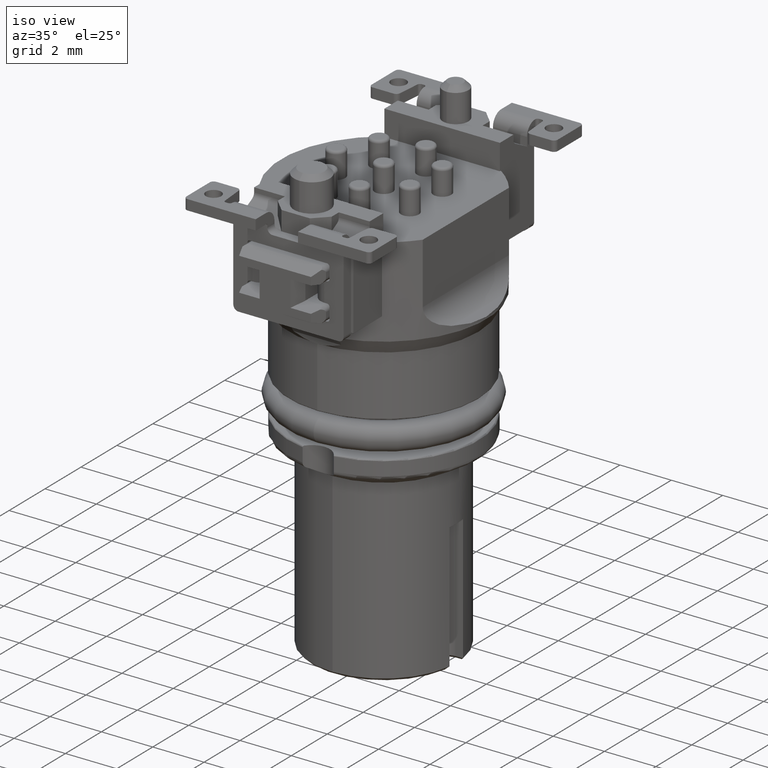
[diagram: clean part render]
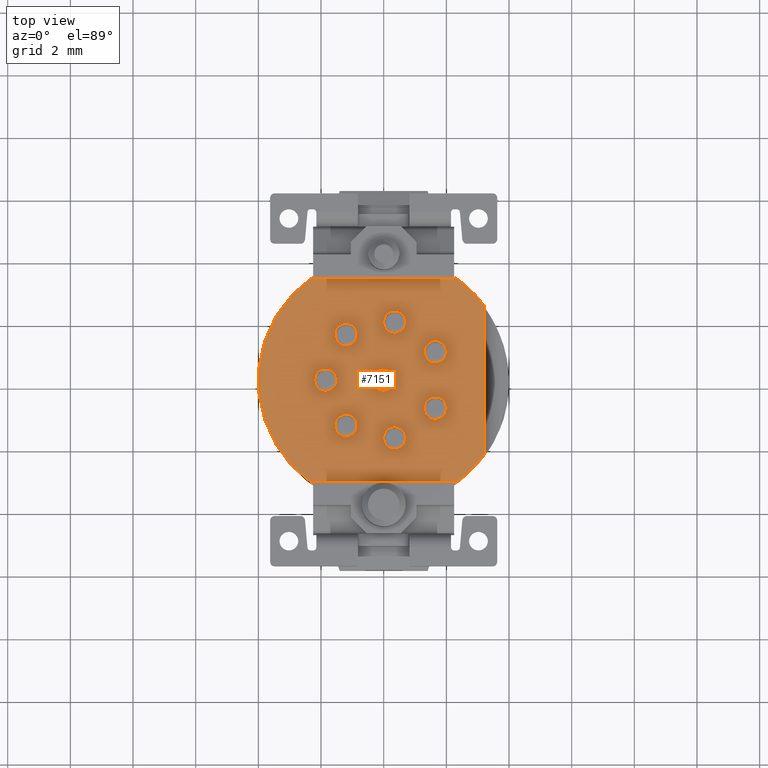
[diagram: tour spotlight — one face highlighted and labeled with its STEP entity id]
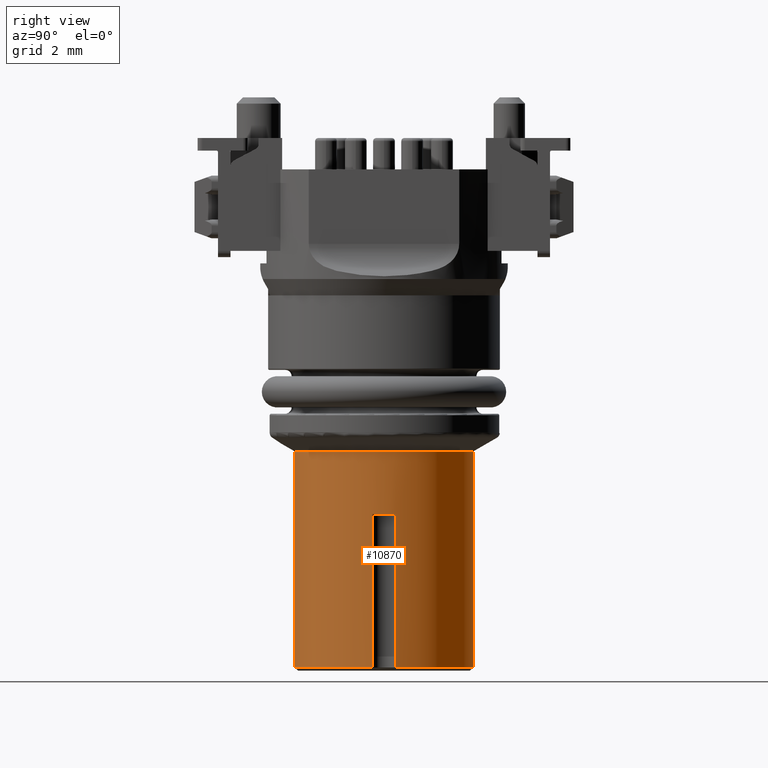
[diagram: tour spotlight — one face highlighted and labeled with its STEP entity id]
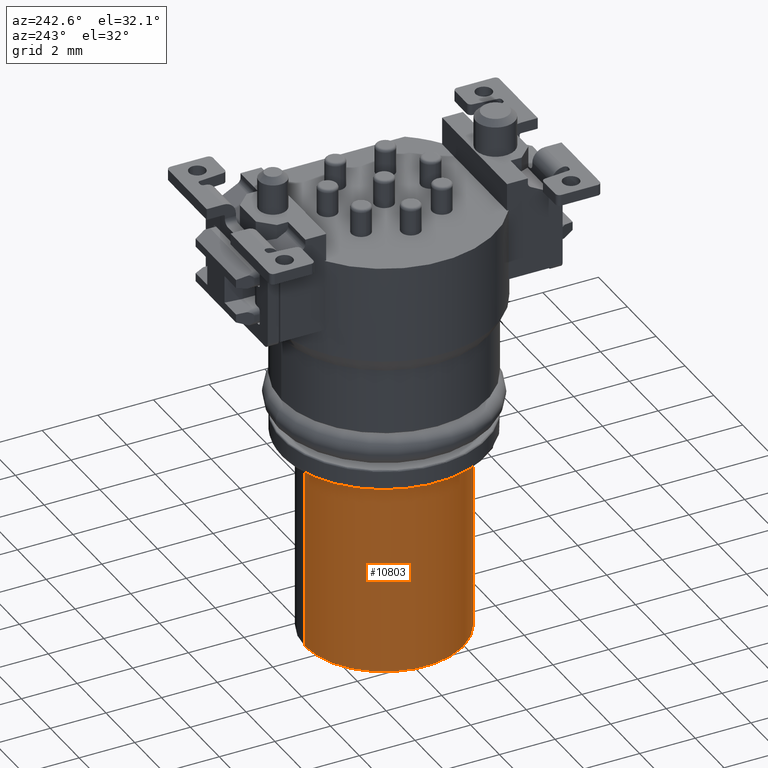
[diagram: tour spotlight — one face highlighted and labeled with its STEP entity id]
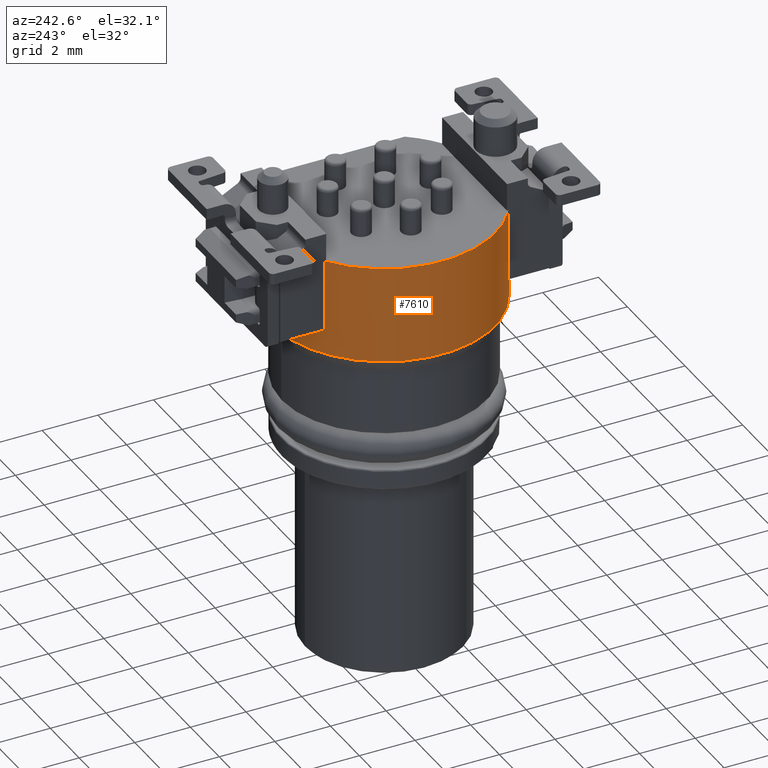
[diagram: tour spotlight — one face highlighted and labeled with its STEP entity id]
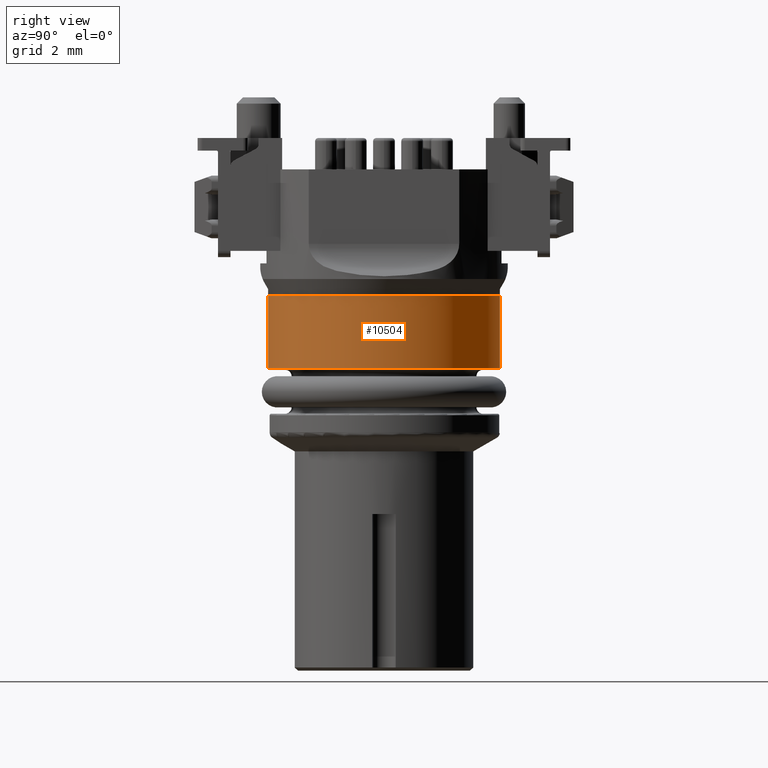
[diagram: tour spotlight — one face highlighted and labeled with its STEP entity id]
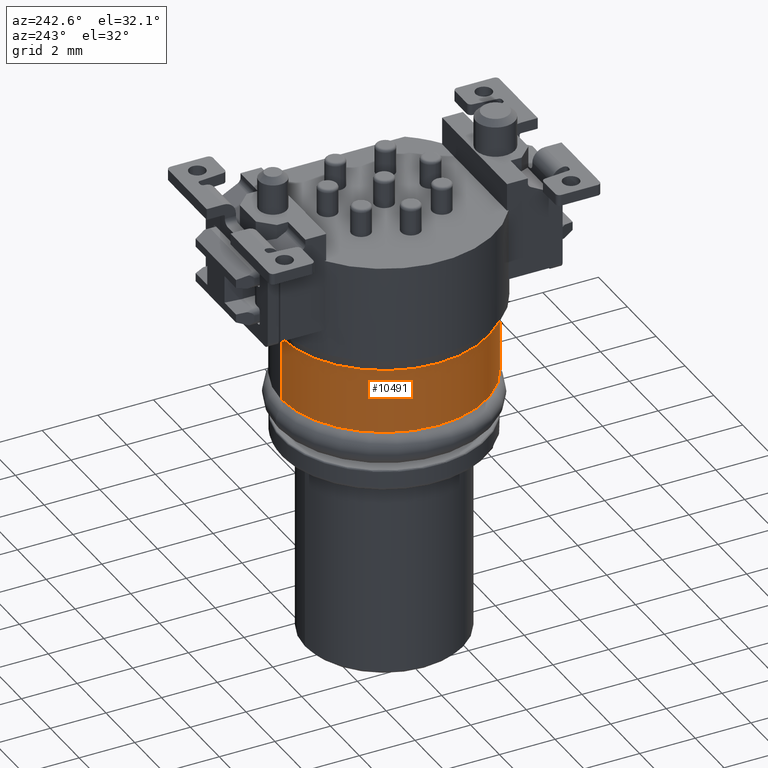
[diagram: tour spotlight — one face highlighted and labeled with its STEP entity id]
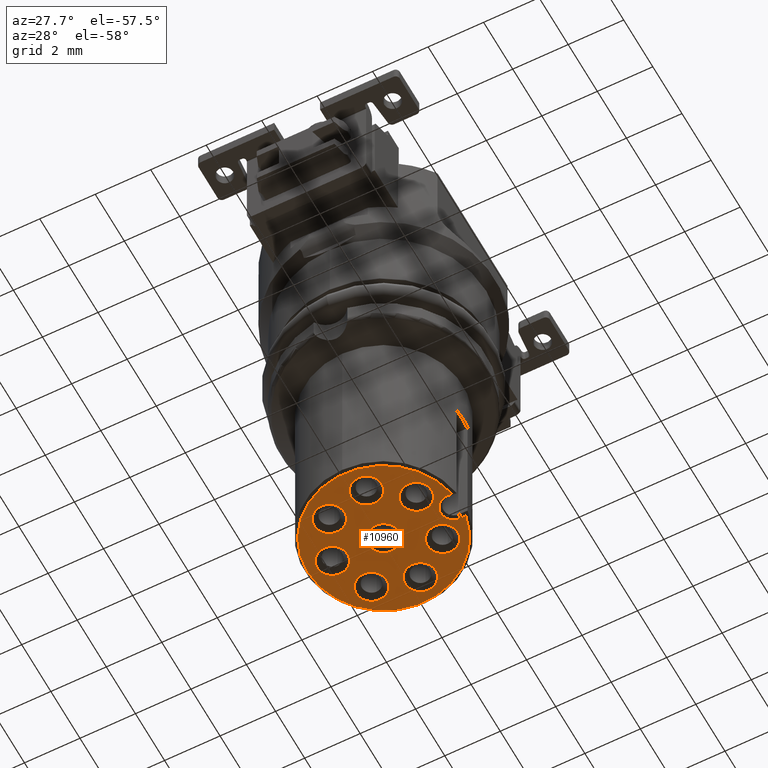
[diagram: tour spotlight — one face highlighted and labeled with its STEP entity id]
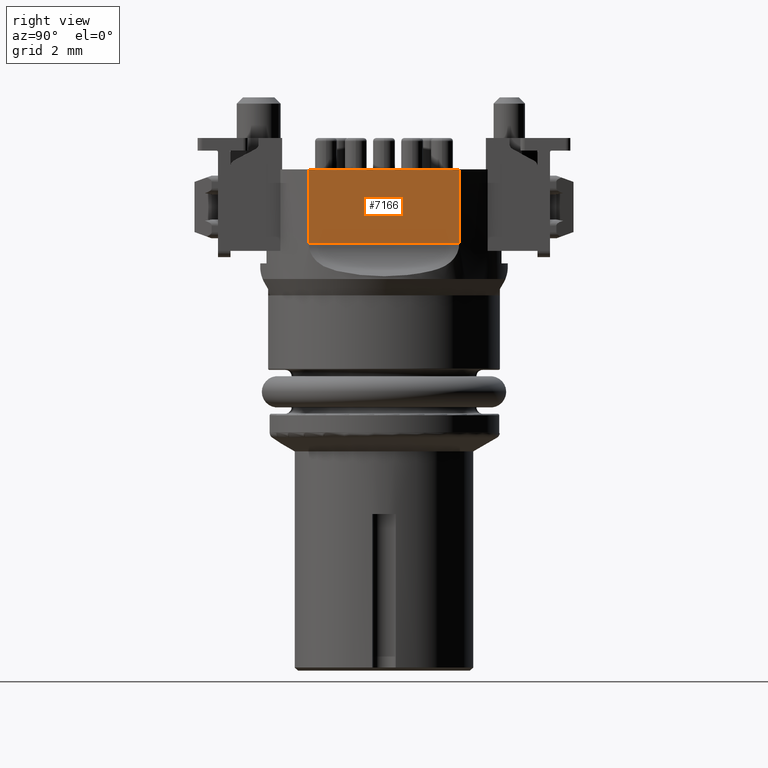
[diagram: tour spotlight — one face highlighted and labeled with its STEP entity id]
A machine part: a face-by-face anatomy tour. The part has 477 B-rep faces; the first image is the clean iso view, then the 8 largest visible faces are spotlighted one at a time (largest first), each with its STEP entity span.

Face 1 — top view, entity #7151. In plain terms, the highlighted planar face has unit normal (0, 0, 1).
Definition (entity closure, byte-faithful):
#22=DIRECTION('',(0.E0,1.E0,0.E0));
#23=VECTOR('',#22,4.8E0);
#24=CARTESIAN_POINT('',(3.2E0,-2.4E0,-1.E0));
#25=LINE('',#24,#23);
#26=DIRECTION('',(0.E0,1.E0,0.E0));
#27=VECTOR('',#26,5.718913883074E-2);
#28=CARTESIAN_POINT('',(2.25E0,-3.307189138831E0,-1.E0));
#29=LINE('',#28,#27);
#30=DIRECTION('',(-1.E0,0.E0,0.E0));
#31=VECTOR('',#30,4.5E0);
#32=CARTESIAN_POINT('',(2.25E0,-3.25E0,-1.E0));
#33=LINE('',#32,#31);
#34=DIRECTION('',(0.E0,1.E0,0.E0));
#35=VECTOR('',#34,5.718913883074E-2);
#36=CARTESIAN_POINT('',(-2.25E0,-3.307189138831E0,-1.E0));
#37=LINE('',#36,#35);
#38=DIRECTION('',(0.E0,-1.E0,0.E0));
#39=VECTOR('',#38,5.718913883074E-2);
#40=CARTESIAN_POINT('',(-2.25E0,3.307189138831E0,-1.E0));
#41=LINE('',#40,#39);
#42=DIRECTION('',(1.E0,0.E0,0.E0));
#43=VECTOR('',#42,4.5E0);
#44=CARTESIAN_POINT('',(-2.25E0,3.25E0,-1.E0));
#45=LINE('',#44,#43);
#46=DIRECTION('',(0.E0,-1.E0,0.E0));
#47=VECTOR('',#46,5.718913883074E-2);
#48=CARTESIAN_POINT('',(2.25E0,3.307189138831E0,-1.E0));
#49=LINE('',#48,#47);
#50=CARTESIAN_POINT('',(1.65E0,9.E-1,-1.E0));
#51=DIRECTION('',(0.E0,0.E0,-1.E0));
#52=DIRECTION('',(1.E0,0.E0,0.E0));
#53=AXIS2_PLACEMENT_3D('',#50,#51,#52);
#55=CARTESIAN_POINT('',(1.65E0,9.E-1,-1.E0));
#56=DIRECTION('',(0.E0,0.E0,-1.E0));
#57=DIRECTION('',(-1.E0,0.E0,0.E0));
#58=AXIS2_PLACEMENT_3D('',#55,#56,#57);
#60=CARTESIAN_POINT('',(1.65E0,-9.E-1,-1.E0));
#61=DIRECTION('',(0.E0,0.E0,-1.E0));
#62=DIRECTION('',(1.E0,0.E0,0.E0));
#63=AXIS2_PLACEMENT_3D('',#60,#61,#62);
#65=CARTESIAN_POINT('',(1.65E0,-9.E-1,-1.E0));
#66=DIRECTION('',(0.E0,0.E0,-1.E0));
#67=DIRECTION('',(-1.E0,0.E0,0.E0));
#68=AXIS2_PLACEMENT_3D('',#65,#66,#67);
#70=CARTESIAN_POINT('',(3.5E-1,-1.85E0,-1.E0));
#71=DIRECTION('',(0.E0,0.E0,-1.E0));
#72=DIRECTION('',(1.E0,0.E0,0.E0));
#73=AXIS2_PLACEMENT_3D('',#70,#71,#72);
#75=CARTESIAN_POINT('',(3.5E-1,-1.85E0,-1.E0));
#76=DIRECTION('',(0.E0,0.E0,-1.E0));
#77=DIRECTION('',(-1.E0,0.E0,0.E0));
#78=AXIS2_PLACEMENT_3D('',#75,#76,#77);
#80=CARTESIAN_POINT('',(-1.2E0,-1.45E0,-1.E0));
#81=DIRECTION('',(0.E0,0.E0,-1.E0));
#82=DIRECTION('',(1.E0,0.E0,0.E0));
#83=AXIS2_PLACEMENT_3D('',#80,#81,#82);
#85=CARTESIAN_POINT('',(-1.2E0,-1.45E0,-1.E0));
#86=DIRECTION('',(0.E0,0.E0,-1.E0));
#87=DIRECTION('',(-1.E0,0.E0,0.E0));
#88=AXIS2_PLACEMENT_3D('',#85,#86,#87);
#90=CARTESIAN_POINT('',(-1.85E0,0.E0,-1.E0));
#91=DIRECTION('',(0.E0,0.E0,-1.E0));
#92=DIRECTION('',(1.E0,0.E0,0.E0));
#93=AXIS2_PLACEMENT_3D('',#90,#91,#92);
#95=CARTESIAN_POINT('',(-1.85E0,0.E0,-1.E0));
#96=DIRECTION('',(0.E0,0.E0,-1.E0));
#97=DIRECTION('',(-1.E0,0.E0,0.E0));
#98=AXIS2_PLACEMENT_3D('',#95,#96,#97);
#100=CARTESIAN_POINT('',(-1.2E0,1.45E0,-1.E0));
#101=DIRECTION('',(0.E0,0.E0,-1.E0));
#102=DIRECTION('',(1.E0,0.E0,0.E0));
#103=AXIS2_PLACEMENT_3D('',#100,#101,#102);
#105=CARTESIAN_POINT('',(-1.2E0,1.45E0,-1.E0));
#106=DIRECTION('',(0.E0,0.E0,-1.E0));
#107=DIRECTION('',(-1.E0,0.E0,0.E0));
#108=AXIS2_PLACEMENT_3D('',#105,#106,#107);
#110=CARTESIAN_POINT('',(3.5E-1,1.85E0,-1.E0));
#111=DIRECTION('',(0.E0,0.E0,-1.E0));
#112=DIRECTION('',(1.E0,0.E0,0.E0));
#113=AXIS2_PLACEMENT_3D('',#110,#111,#112);
#115=CARTESIAN_POINT('',(3.5E-1,1.85E0,-1.E0));
#116=DIRECTION('',(0.E0,0.E0,-1.E0));
#117=DIRECTION('',(-1.E0,0.E0,0.E0));
#118=AXIS2_PLACEMENT_3D('',#115,#116,#117);
#120=CARTESIAN_POINT('',(-1.224646186824E-14,0.E0,-1.E0));
#121=DIRECTION('',(0.E0,0.E0,-1.E0));
#122=DIRECTION('',(1.E0,0.E0,0.E0));
#123=AXIS2_PLACEMENT_3D('',#120,#121,#122);
#125=CARTESIAN_POINT('',(-1.224646186824E-14,0.E0,-1.E0));
#126=DIRECTION('',(0.E0,0.E0,-1.E0));
#127=DIRECTION('',(-1.E0,0.E0,0.E0));
#128=AXIS2_PLACEMENT_3D('',#125,#126,#127);
#187=CARTESIAN_POINT('',(0.E0,0.E0,-1.E0));
#188=DIRECTION('',(0.E0,0.E0,1.E0));
#189=DIRECTION('',(5.625E-1,-8.267972847077E-1,0.E0));
#190=AXIS2_PLACEMENT_3D('',#187,#188,#189);
#234=CARTESIAN_POINT('',(0.E0,0.E0,-1.E0));
#235=DIRECTION('',(0.E0,0.E0,1.E0));
#236=DIRECTION('',(8.E-1,6.E-1,0.E0));
#237=AXIS2_PLACEMENT_3D('',#234,#235,#236);
#548=CARTESIAN_POINT('',(0.E0,0.E0,-1.E0));
#549=DIRECTION('',(0.E0,0.E0,-1.E0));
#550=DIRECTION('',(-5.625E-1,-8.267972847077E-1,0.E0));
#551=AXIS2_PLACEMENT_3D('',#548,#549,#550);
#5611=CARTESIAN_POINT('',(2.25E0,-3.25E0,-1.E0));
#5612=CARTESIAN_POINT('',(-2.25E0,-3.25E0,-1.E0));
#5613=VERTEX_POINT('',#5611);
#5614=VERTEX_POINT('',#5612);
#5615=CARTESIAN_POINT('',(-2.25E0,3.25E0,-1.E0));
#5616=CARTESIAN_POINT('',(2.25E0,3.25E0,-1.E0));
#5617=VERTEX_POINT('',#5615);
#5618=VERTEX_POINT('',#5616);
#5619=CARTESIAN_POINT('',(-2.25E0,-3.307189138831E0,-1.E0));
#5620=VERTEX_POINT('',#5619);
#5621=CARTESIAN_POINT('',(2.25E0,-3.307189138831E0,-1.E0));
#5622=VERTEX_POINT('',#5621);
#5623=CARTESIAN_POINT('',(2.25E0,3.307189138831E0,-1.E0));
#5624=VERTEX_POINT('',#5623);
#5625=CARTESIAN_POINT('',(-2.25E0,3.307189138831E0,-1.E0));
#5626=VERTEX_POINT('',#5625);
#5643=CARTESIAN_POINT('',(3.2E0,-2.4E0,-1.E0));
#5644=CARTESIAN_POINT('',(3.2E0,2.4E0,-1.E0));
#5645=VERTEX_POINT('',#5643);
#5646=VERTEX_POINT('',#5644);
#6988=CARTESIAN_POINT('',(2.E0,9.E-1,-1.E0));
#6989=CARTESIAN_POINT('',(1.3E0,9.E-1,-1.E0));
#6990=VERTEX_POINT('',#6988);
#6991=VERTEX_POINT('',#6989);
#7000=CARTESIAN_POINT('',(2.E0,-9.E-1,-1.E0));
#7001=CARTESIAN_POINT('',(1.3E0,-9.E-1,-1.E0));
#7002=VERTEX_POINT('',#7000);
#7003=VERTEX_POINT('',#7001);
#7012=CARTESIAN_POINT('',(7.E-1,-1.85E0,-1.E0));
#7013=CARTESIAN_POINT('',(-1.276756478319E-14,-1.85E0,-1.E0));
#7014=VERTEX_POINT('',#7012);
#7015=VERTEX_POINT('',#7013);
#7024=CARTESIAN_POINT('',(-8.5E-1,-1.45E0,-1.E0));
#7025=CARTESIAN_POINT('',(-1.55E0,-1.45E0,-1.E0));
#7026=VERTEX_POINT('',#7024);
#7027=VERTEX_POINT('',#7025);
#7036=CARTESIAN_POINT('',(-1.5E0,0.E0,-1.E0));
#7037=CARTESIAN_POINT('',(-2.2E0,0.E0,-1.E0));
#7038=VERTEX_POINT('',#7036);
#7039=VERTEX_POINT('',#7037);
#7048=CARTESIAN_POINT('',(-8.5E-1,1.45E0,-1.E0));
#7049=CARTESIAN_POINT('',(-1.55E0,1.45E0,-1.E0));
#7050=VERTEX_POINT('',#7048);
#7051=VERTEX_POINT('',#7049);
#7060=CARTESIAN_POINT('',(7.E-1,1.85E0,-1.E0));
#7061=CARTESIAN_POINT('',(-1.232347557334E-14,1.85E0,-1.E0));
#7062=VERTEX_POINT('',#7060);
#7063=VERTEX_POINT('',#7061);
#7072=CARTESIAN_POINT('',(3.5E-1,0.E0,-1.E0));
#7073=CARTESIAN_POINT('',(-3.5E-1,0.E0,-1.E0));
#7074=VERTEX_POINT('',#7072);
#7075=VERTEX_POINT('',#7073);
#7076=CARTESIAN_POINT('',(0.E0,0.E0,-1.E0));
#7077=DIRECTION('',(0.E0,0.E0,1.E0));
#7078=DIRECTION('',(0.E0,1.E0,0.E0));
#7079=AXIS2_PLACEMENT_3D('',#7076,#7077,#7078);
#7080=PLANE('',#7079);
#7082=ORIENTED_EDGE('',*,*,#7081,.F.);
#7084=ORIENTED_EDGE('',*,*,#7083,.F.);
#7086=ORIENTED_EDGE('',*,*,#7085,.T.);
#7088=ORIENTED_EDGE('',*,*,#7087,.T.);
#7090=ORIENTED_EDGE('',*,*,#7089,.F.);
#7092=ORIENTED_EDGE('',*,*,#7091,.T.);
#7094=ORIENTED_EDGE('',*,*,#7093,.T.);
#7096=ORIENTED_EDGE('',*,*,#7095,.T.);
#7098=ORIENTED_EDGE('',*,*,#7097,.F.);
#7100=ORIENTED_EDGE('',*,*,#7099,.F.);
#7101=EDGE_LOOP('',(#7082,#7084,#7086,#7088,#7090,#7092,#7094,#7096,#7098,
#7100));
#7102=FACE_OUTER_BOUND('',#7101,.F.);
#7104=ORIENTED_EDGE('',*,*,#7103,.F.);
#7106=ORIENTED_EDGE('',*,*,#7105,.F.);
#7107=EDGE_LOOP('',(#7104,#7106));
#7108=FACE_BOUND('',#7107,.F.);
#7110=ORIENTED_EDGE('',*,*,#7109,.F.);
#7112=ORIENTED_EDGE('',*,*,#7111,.F.);
#7113=EDGE_LOOP('',(#7110,#7112));
#7114=FACE_BOUND('',#7113,.F.);
#7116=ORIENTED_EDGE('',*,*,#7115,.F.);
#7118=ORIENTED_EDGE('',*,*,#7117,.F.);
#7119=EDGE_LOOP('',(#7116,#7118));
#7120=FACE_BOUND('',#7119,.F.);
#7122=ORIENTED_EDGE('',*,*,#7121,.F.);
#7124=ORIENTED_EDGE('',*,*,#7123,.F.);
#7125=EDGE_LOOP('',(#7122,#7124));
#7126=FACE_BOUND('',#7125,.F.);
#7128=ORIENTED_EDGE('',*,*,#7127,.F.);
#7130=ORIENTED_EDGE('',*,*,#7129,.F.);
#7131=EDGE_LOOP('',(#7128,#7130));
#7132=FACE_BOUND('',#7131,.F.);
#7134=ORIENTED_EDGE('',*,*,#7133,.F.);
#7136=ORIENTED_EDGE('',*,*,#7135,.F.);
#7137=EDGE_LOOP('',(#7134,#7136));
#7138=FACE_BOUND('',#7137,.F.);
#7140=ORIENTED_EDGE('',*,*,#7139,.F.);
#7142=ORIENTED_EDGE('',*,*,#7141,.F.);
#7143=EDGE_LOOP('',(#7140,#7142));
#7144=FACE_BOUND('',#7143,.F.);
#7146=ORIENTED_EDGE('',*,*,#7145,.F.);
#7148=ORIENTED_EDGE('',*,*,#7147,.F.);
#7149=EDGE_LOOP('',(#7146,#7148));
#7150=FACE_BOUND('',#7149,.F.);
#54=CIRCLE('',#53,3.5E-1);
#59=CIRCLE('',#58,3.5E-1);
#64=CIRCLE('',#63,3.5E-1);
#69=CIRCLE('',#68,3.5E-1);
#74=CIRCLE('',#73,3.5E-1);
#79=CIRCLE('',#78,3.5E-1);
#84=CIRCLE('',#83,3.5E-1);
#89=CIRCLE('',#88,3.5E-1);
#94=CIRCLE('',#93,3.5E-1);
#99=CIRCLE('',#98,3.5E-1);
#104=CIRCLE('',#103,3.5E-1);
#109=CIRCLE('',#108,3.5E-1);
#114=CIRCLE('',#113,3.5E-1);
#119=CIRCLE('',#118,3.5E-1);
#124=CIRCLE('',#123,3.5E-1);
#129=CIRCLE('',#128,3.5E-1);
#191=CIRCLE('',#190,4.E0);
#238=CIRCLE('',#237,4.E0);
#552=CIRCLE('',#551,4.E0);
#7081=EDGE_CURVE('',#5645,#5646,#25,.T.);
#7083=EDGE_CURVE('',#5622,#5645,#191,.T.);
#7085=EDGE_CURVE('',#5622,#5613,#29,.T.);
#7087=EDGE_CURVE('',#5613,#5614,#33,.T.);
#7089=EDGE_CURVE('',#5620,#5614,#37,.T.);
#7091=EDGE_CURVE('',#5620,#5626,#552,.T.);
#7093=EDGE_CURVE('',#5626,#5617,#41,.T.);
#7095=EDGE_CURVE('',#5617,#5618,#45,.T.);
#7097=EDGE_CURVE('',#5624,#5618,#49,.T.);
#7099=EDGE_CURVE('',#5646,#5624,#238,.T.);
#7103=EDGE_CURVE('',#6990,#6991,#54,.T.);
#7105=EDGE_CURVE('',#6991,#6990,#59,.T.);
#7109=EDGE_CURVE('',#7002,#7003,#64,.T.);
#7111=EDGE_CURVE('',#7003,#7002,#69,.T.);
#7115=EDGE_CURVE('',#7014,#7015,#74,.T.);
#7117=EDGE_CURVE('',#7015,#7014,#79,.T.);
#7121=EDGE_CURVE('',#7026,#7027,#84,.T.);
#7123=EDGE_CURVE('',#7027,#7026,#89,.T.);
#7127=EDGE_CURVE('',#7038,#7039,#94,.T.);
#7129=EDGE_CURVE('',#7039,#7038,#99,.T.);
#7133=EDGE_CURVE('',#7050,#7051,#104,.T.);
#7135=EDGE_CURVE('',#7051,#7050,#109,.T.);
#7139=EDGE_CURVE('',#7062,#7063,#114,.T.);
#7141=EDGE_CURVE('',#7063,#7062,#119,.T.);
#7145=EDGE_CURVE('',#7074,#7075,#124,.T.);
#7147=EDGE_CURVE('',#7075,#7074,#129,.T.);
#7151=ADVANCED_FACE('',(#7102,#7108,#7114,#7120,#7126,#7132,#7138,#7144,#7150),
#7080,.T.);

Face 2 — right view, entity #10870. In plain terms, the highlighted cylindrical surface (partial cylindrical patch) has radius 2.85 mm, axis along (0, 0, 1).
Definition (entity closure, byte-faithful):
#2952=DIRECTION('',(-1.214124557215E-10,-1.832003148184E-11,-1.E0));
#2953=VECTOR('',#2952,6.900000000126E0);
#2954=CARTESIAN_POINT('',(0.E0,2.85E0,-1.E1));
#2955=LINE('',#2954,#2953);
#2961=DIRECTION('',(1.214123608566E-10,1.831977403882E-11,-1.E0));
#2962=VECTOR('',#2961,6.900000000126E0);
#2963=CARTESIAN_POINT('',(0.E0,-2.85E0,-1.E1));
#2964=LINE('',#2963,#2962);
#2970=CARTESIAN_POINT('',(2.825221230276E0,-3.75E-1,-1.69E1));
#2977=CARTESIAN_POINT('',(2.825221230276E0,3.75E-1,-1.69E1));
#2992=DIRECTION('',(0.E0,0.E0,1.E0));
#2993=VECTOR('',#2992,4.9E0);
#2994=CARTESIAN_POINT('',(2.825221230276E0,-3.75E-1,-1.69E1));
#2995=LINE('',#2994,#2993);
#2996=CARTESIAN_POINT('',(0.E0,0.E0,-1.69E1));
#2997=DIRECTION('',(0.E0,0.E0,-1.E0));
#2998=DIRECTION('',(9.913056948335E-1,-1.315789473684E-1,0.E0));
#2999=AXIS2_PLACEMENT_3D('',#2996,#2997,#2998);
#3001=CARTESIAN_POINT('',(0.E0,0.E0,-1.E1));
#3002=DIRECTION('',(0.E0,0.E0,1.E0));
#3003=DIRECTION('',(0.E0,-1.E0,0.E0));
#3004=AXIS2_PLACEMENT_3D('',#3001,#3002,#3003);
#3006=CARTESIAN_POINT('',(0.E0,0.E0,-1.69E1));
#3007=DIRECTION('',(0.E0,0.E0,-1.E0));
#3008=DIRECTION('',(0.E0,1.E0,0.E0));
#3009=AXIS2_PLACEMENT_3D('',#3006,#3007,#3008);
#3011=DIRECTION('',(0.E0,0.E0,1.E0));
#3012=VECTOR('',#3011,4.9E0);
#3013=CARTESIAN_POINT('',(2.825221230276E0,3.75E-1,-1.69E1));
#3014=LINE('',#3013,#3012);
#3015=CARTESIAN_POINT('',(0.E0,0.E0,-1.2E1));
#3016=DIRECTION('',(0.E0,0.E0,1.E0));
#3017=DIRECTION('',(9.913056948335E-1,-1.315789473684E-1,0.E0));
#3018=AXIS2_PLACEMENT_3D('',#3015,#3016,#3017);
#5599=CARTESIAN_POINT('',(0.E0,-2.85E0,-1.E1));
#5600=CARTESIAN_POINT('',(0.E0,2.85E0,-1.E1));
#5601=VERTEX_POINT('',#5599);
#5602=VERTEX_POINT('',#5600);
#5927=CARTESIAN_POINT('',(0.E0,-2.85E0,-1.69E1));
#5928=CARTESIAN_POINT('',(0.E0,2.85E0,-1.69E1));
#5929=VERTEX_POINT('',#5927);
#5930=VERTEX_POINT('',#5928);
#6047=CARTESIAN_POINT('',(2.825221230276E0,-3.75E-1,-1.2E1));
#6048=CARTESIAN_POINT('',(2.825221230276E0,3.75E-1,-1.2E1));
#6049=VERTEX_POINT('',#6047);
#6050=VERTEX_POINT('',#6048);
#6052=VERTEX_POINT('',#2970);
#6061=VERTEX_POINT('',#2977);
#10853=CARTESIAN_POINT('',(0.E0,0.E0,-1.78E1));
#10854=DIRECTION('',(0.E0,0.E0,1.E0));
#10855=DIRECTION('',(0.E0,1.E0,0.E0));
#10856=AXIS2_PLACEMENT_3D('',#10853,#10854,#10855);
#10857=CYLINDRICAL_SURFACE('',#10856,2.85E0);
#10858=ORIENTED_EDGE('',*,*,#10844,.F.);
#10859=ORIENTED_EDGE('',*,*,#10818,.T.);
#10860=ORIENTED_EDGE('',*,*,#10799,.F.);
#10861=ORIENTED_EDGE('',*,*,#10728,.T.);
#10862=ORIENTED_EDGE('',*,*,#10796,.T.);
#10863=ORIENTED_EDGE('',*,*,#10815,.T.);
#10865=ORIENTED_EDGE('',*,*,#10864,.T.);
#10867=ORIENTED_EDGE('',*,*,#10866,.F.);
#10868=EDGE_LOOP('',(#10858,#10859,#10860,#10861,#10862,#10863,#10865,#10867));
#10869=FACE_OUTER_BOUND('',#10868,.F.);
#3000=CIRCLE('',#2999,2.85E0);
#3005=CIRCLE('',#3004,2.85E0);
#3010=CIRCLE('',#3009,2.85E0);
#3019=CIRCLE('',#3018,2.85E0);
#10728=EDGE_CURVE('',#5601,#5602,#3005,.T.);
#10796=EDGE_CURVE('',#5602,#5930,#2955,.T.);
#10799=EDGE_CURVE('',#5601,#5929,#2964,.T.);
#10815=EDGE_CURVE('',#5930,#6061,#3010,.T.);
#10818=EDGE_CURVE('',#6052,#5929,#3000,.T.);
#10844=EDGE_CURVE('',#6052,#6049,#2995,.T.);
#10864=EDGE_CURVE('',#6061,#6050,#3014,.T.);
#10866=EDGE_CURVE('',#6049,#6050,#3019,.T.);
#10870=ADVANCED_FACE('',(#10869),#10857,.T.);

Face 3 — auxiliary view, entity #10803. In plain terms, the highlighted cylindrical surface (partial cylindrical patch) has radius 2.85 mm, axis along (0, 0, 1).
Definition (entity closure, byte-faithful):
#2947=CARTESIAN_POINT('',(0.E0,0.E0,-1.69E1));
#2948=DIRECTION('',(0.E0,0.E0,-1.E0));
#2949=DIRECTION('',(0.E0,-1.E0,0.E0));
#2950=AXIS2_PLACEMENT_3D('',#2947,#2948,#2949);
#2952=DIRECTION('',(-1.214124557215E-10,-1.832003148184E-11,-1.E0));
#2953=VECTOR('',#2952,6.900000000126E0);
#2954=CARTESIAN_POINT('',(0.E0,2.85E0,-1.E1));
#2955=LINE('',#2954,#2953);
#2956=CARTESIAN_POINT('',(0.E0,0.E0,-1.E1));
#2957=DIRECTION('',(0.E0,0.E0,-1.E0));
#2958=DIRECTION('',(0.E0,-1.E0,0.E0));
#2959=AXIS2_PLACEMENT_3D('',#2956,#2957,#2958);
#2961=DIRECTION('',(1.214123608566E-10,1.831977403882E-11,-1.E0));
#2962=VECTOR('',#2961,6.900000000126E0);
#2963=CARTESIAN_POINT('',(0.E0,-2.85E0,-1.E1));
#2964=LINE('',#2963,#2962);
#5599=CARTESIAN_POINT('',(0.E0,-2.85E0,-1.E1));
#5600=CARTESIAN_POINT('',(0.E0,2.85E0,-1.E1));
#5601=VERTEX_POINT('',#5599);
#5602=VERTEX_POINT('',#5600);
#5927=CARTESIAN_POINT('',(0.E0,-2.85E0,-1.69E1));
#5928=CARTESIAN_POINT('',(0.E0,2.85E0,-1.69E1));
#5929=VERTEX_POINT('',#5927);
#5930=VERTEX_POINT('',#5928);
#10789=CARTESIAN_POINT('',(0.E0,0.E0,-1.78E1));
#10790=DIRECTION('',(0.E0,0.E0,1.E0));
#10791=DIRECTION('',(0.E0,1.E0,0.E0));
#10792=AXIS2_PLACEMENT_3D('',#10789,#10790,#10791);
#10793=CYLINDRICAL_SURFACE('',#10792,2.85E0);
#10795=ORIENTED_EDGE('',*,*,#10794,.T.);
#10797=ORIENTED_EDGE('',*,*,#10796,.F.);
#10798=ORIENTED_EDGE('',*,*,#10782,.F.);
#10800=ORIENTED_EDGE('',*,*,#10799,.T.);
#10801=EDGE_LOOP('',(#10795,#10797,#10798,#10800));
#10802=FACE_OUTER_BOUND('',#10801,.F.);
#2951=CIRCLE('',#2950,2.85E0);
#2960=CIRCLE('',#2959,2.85E0);
#10782=EDGE_CURVE('',#5601,#5602,#2960,.T.);
#10794=EDGE_CURVE('',#5929,#5930,#2951,.T.);
#10796=EDGE_CURVE('',#5602,#5930,#2955,.T.);
#10799=EDGE_CURVE('',#5601,#5929,#2964,.T.);
#10803=ADVANCED_FACE('',(#10802),#10793,.T.);

Face 4 — auxiliary view, entity #7610. In plain terms, the highlighted cylindrical surface (partial cylindrical patch) has radius 4 mm, axis along (0, 0, 1).
Definition (entity closure, byte-faithful):
#513=CARTESIAN_POINT('',(-6.304760106459E-1,3.95E0,-4.118653347947E0));
#514=CARTESIAN_POINT('',(-6.304760106459E-1,3.95E0,-4.131001186125E0));
#515=CARTESIAN_POINT('',(-6.332939349757E-1,3.949552270527E0,
-4.156461051326E0));
#516=CARTESIAN_POINT('',(-6.481520979908E-1,3.947155056197E0,
-4.197857878743E0));
#517=CARTESIAN_POINT('',(-6.734620569823E-1,3.942937221111E0,
-4.239765432504E0));
#518=CARTESIAN_POINT('',(-7.078554948006E-1,3.936933982192E0,
-4.281632873562E0));
#519=CARTESIAN_POINT('',(-7.503781458316E-1,3.929080103750E0,
-4.323642289659E0));
#520=CARTESIAN_POINT('',(-8.003474555039E-1,3.919239442149E0,
-4.366090400312E0));
#521=CARTESIAN_POINT('',(-8.574796766794E-1,3.907174096538E0,
-4.409367846896E0));
#522=CARTESIAN_POINT('',(-9.216697005217E-1,3.892575191430E0,
-4.453790404552E0));
#523=CARTESIAN_POINT('',(-9.693539124898E-1,3.880853015550E0,
-4.484434926159E0));
#524=CARTESIAN_POINT('',(-9.943720652625E-1,3.874432112688E0,-4.5E0));
#526=DIRECTION('',(0.E0,0.E0,1.E0));
#527=VECTOR('',#526,1.186533479473E-1);
#528=CARTESIAN_POINT('',(-6.304760106459E-1,3.95E0,-4.118653347947E0));
#529=LINE('',#528,#527);
#530=CARTESIAN_POINT('',(0.E0,0.E0,-4.E0));
#531=DIRECTION('',(0.E0,0.E0,1.E0));
#532=DIRECTION('',(-1.576190026615E-1,9.875E-1,0.E0));
#533=AXIS2_PLACEMENT_3D('',#530,#531,#532);
#535=DIRECTION('',(0.E0,0.E0,1.E0));
#536=VECTOR('',#535,4.E-1);
#537=CARTESIAN_POINT('',(-1.391941090708E0,3.75E0,-4.E0));
#538=LINE('',#537,#536);
#539=CARTESIAN_POINT('',(0.E0,0.E0,-3.6E0));
#540=DIRECTION('',(0.E0,0.E0,1.E0));
#541=DIRECTION('',(-3.479852726769E-1,9.375E-1,0.E0));
#542=AXIS2_PLACEMENT_3D('',#539,#540,#541);
#544=DIRECTION('',(0.E0,0.E0,1.E0));
#545=VECTOR('',#544,2.6E0);
#546=CARTESIAN_POINT('',(-2.25E0,3.307189138831E0,-3.6E0));
#547=LINE('',#546,#545);
#548=CARTESIAN_POINT('',(0.E0,0.E0,-1.E0));
#549=DIRECTION('',(0.E0,0.E0,-1.E0));
#550=DIRECTION('',(-5.625E-1,-8.267972847077E-1,0.E0));
#551=AXIS2_PLACEMENT_3D('',#548,#549,#550);
#553=DIRECTION('',(0.E0,0.E0,1.E0));
#554=VECTOR('',#553,2.6E0);
#555=CARTESIAN_POINT('',(-2.25E0,-3.307189138831E0,-3.6E0));
#556=LINE('',#555,#554);
#557=CARTESIAN_POINT('',(0.E0,0.E0,-3.6E0));
#558=DIRECTION('',(0.E0,0.E0,1.E0));
#559=DIRECTION('',(-5.625E-1,-8.267972847077E-1,0.E0));
#560=AXIS2_PLACEMENT_3D('',#557,#558,#559);
#562=DIRECTION('',(0.E0,0.E0,1.E0));
#563=VECTOR('',#562,4.E-1);
#564=CARTESIAN_POINT('',(-1.391941090708E0,-3.75E0,-4.E0));
#565=LINE('',#564,#563);
#566=CARTESIAN_POINT('',(0.E0,0.E0,-4.E0));
#567=DIRECTION('',(0.E0,0.E0,1.E0));
#568=DIRECTION('',(-3.479852726769E-1,-9.375E-1,0.E0));
#569=AXIS2_PLACEMENT_3D('',#566,#567,#568);
#571=DIRECTION('',(0.E0,0.E0,1.E0));
#572=VECTOR('',#571,1.186533479473E-1);
#573=CARTESIAN_POINT('',(-6.304760106459E-1,-3.95E0,-4.118653347947E0));
#574=LINE('',#573,#572);
#575=CARTESIAN_POINT('',(-9.943720652625E-1,-3.874432112688E0,-4.5E0));
#576=CARTESIAN_POINT('',(-9.693563807893E-1,-3.880852382061E0,
-4.484436461814E0));
#577=CARTESIAN_POINT('',(-9.216756818341E-1,-3.892573756852E0,
-4.453794327530E0));
#578=CARTESIAN_POINT('',(-8.574867237698E-1,-3.907172554807E0,
-4.409372915837E0));
#579=CARTESIAN_POINT('',(-8.003517002837E-1,-3.919238600596E0,
-4.366093969501E0));
#580=CARTESIAN_POINT('',(-7.503767256477E-1,-3.929080387982E0,
-4.323641038408E0));
#581=CARTESIAN_POINT('',(-7.078512889034E-1,-3.936934766174E0,
-4.281629157660E0));
#582=CARTESIAN_POINT('',(-6.734464156117E-1,-3.942939905569E0,
-4.239744596616E0));
#583=CARTESIAN_POINT('',(-6.481413845097E-1,-3.947156799583E0,
-4.197836201807E0));
#584=CARTESIAN_POINT('',(-6.332886734305E-1,-3.949553110727E0,
-4.156436590206E0));
#585=CARTESIAN_POINT('',(-6.304760106459E-1,-3.95E0,-4.130991308130E0));
#586=CARTESIAN_POINT('',(-6.304760106459E-1,-3.95E0,-4.118653347947E0));
#588=CARTESIAN_POINT('',(0.E0,0.E0,-4.5E0));
#589=DIRECTION('',(0.E0,0.E0,1.E0));
#590=DIRECTION('',(-2.485930163156E-1,9.686080281719E-1,0.E0));
#591=AXIS2_PLACEMENT_3D('',#588,#589,#590);
#5619=CARTESIAN_POINT('',(-2.25E0,-3.307189138831E0,-1.E0));
#5620=VERTEX_POINT('',#5619);
#5625=CARTESIAN_POINT('',(-2.25E0,3.307189138831E0,-1.E0));
#5626=VERTEX_POINT('',#5625);
#5631=CARTESIAN_POINT('',(-2.25E0,-3.307189138831E0,-3.6E0));
#5632=VERTEX_POINT('',#5631);
#5633=CARTESIAN_POINT('',(-2.25E0,3.307189138831E0,-3.6E0));
#5634=VERTEX_POINT('',#5633);
#5954=VERTEX_POINT('',#513);
#5955=VERTEX_POINT('',#524);
#5956=CARTESIAN_POINT('',(-6.304760106459E-1,3.95E0,-4.E0));
#5957=VERTEX_POINT('',#5956);
#5958=CARTESIAN_POINT('',(-1.391941090708E0,3.75E0,-4.E0));
#5959=VERTEX_POINT('',#5958);
#5960=CARTESIAN_POINT('',(-1.391941090708E0,3.75E0,-3.6E0));
#5961=VERTEX_POINT('',#5960);
#5962=CARTESIAN_POINT('',(-1.391941090708E0,-3.75E0,-4.E0));
#5963=CARTESIAN_POINT('',(-1.391941090708E0,-3.75E0,-3.6E0));
#5964=VERTEX_POINT('',#5962);
#5965=VERTEX_POINT('',#5963);
#5966=CARTESIAN_POINT('',(-6.304760106459E-1,-3.95E0,-4.E0));
#5967=VERTEX_POINT('',#5966);
#5968=CARTESIAN_POINT('',(-6.304760106459E-1,-3.95E0,-4.118653347947E0));
#5969=VERTEX_POINT('',#5968);
#5970=VERTEX_POINT('',#575);
#7582=CARTESIAN_POINT('',(0.E0,0.E0,-1.78E1));
#7583=DIRECTION('',(0.E0,0.E0,1.E0));
#7584=DIRECTION('',(0.E0,1.E0,0.E0));
#7585=AXIS2_PLACEMENT_3D('',#7582,#7583,#7584);
#7586=CYLINDRICAL_SURFACE('',#7585,4.E0);
#7587=ORIENTED_EDGE('',*,*,#7219,.F.);
#7588=ORIENTED_EDGE('',*,*,#7238,.T.);
#7589=ORIENTED_EDGE('',*,*,#7252,.T.);
#7590=ORIENTED_EDGE('',*,*,#7266,.T.);
#7591=ORIENTED_EDGE('',*,*,#7281,.T.);
#7592=ORIENTED_EDGE('',*,*,#7559,.T.);
#7593=ORIENTED_EDGE('',*,*,#7091,.F.);
#7595=ORIENTED_EDGE('',*,*,#7594,.F.);
#7597=ORIENTED_EDGE('',*,*,#7596,.T.);
#7599=ORIENTED_EDGE('',*,*,#7598,.F.);
#7601=ORIENTED_EDGE('',*,*,#7600,.T.);
#7603=ORIENTED_EDGE('',*,*,#7602,.F.);
#7605=ORIENTED_EDGE('',*,*,#7604,.F.);
#7607=ORIENTED_EDGE('',*,*,#7606,.F.);
#7608=EDGE_LOOP('',(#7587,#7588,#7589,#7590,#7591,#7592,#7593,#7595,#7597,#7599,
#7601,#7603,#7605,#7607));
#7609=FACE_OUTER_BOUND('',#7608,.F.);
#525=B_SPLINE_CURVE_WITH_KNOTS('',3,(#513,#514,#515,#516,#517,#518,#519,#520,
#521,#522,#523,#524),.UNSPECIFIED.,.F.,.F.,(4,1,1,1,1,1,1,1,1,4),(0.E0,
1.111111111111E-1,2.222222222222E-1,3.333333333333E-1,4.444444444444E-1,
5.555555555556E-1,6.666666666667E-1,7.777777777778E-1,8.888888888889E-1,1.E0),
.UNSPECIFIED.);
#534=CIRCLE('',#533,4.E0);
#543=CIRCLE('',#542,4.E0);
#552=CIRCLE('',#551,4.E0);
#561=CIRCLE('',#560,4.E0);
#570=CIRCLE('',#569,4.E0);
#587=B_SPLINE_CURVE_WITH_KNOTS('',3,(#575,#576,#577,#578,#579,#580,#581,#582,
#583,#584,#585,#586),.UNSPECIFIED.,.F.,.F.,(4,1,1,1,1,1,1,1,1,4),(0.E0,
1.111111111111E-1,2.222222222222E-1,3.333333333333E-1,4.444444444444E-1,
5.555555555556E-1,6.666666666667E-1,7.777777777778E-1,8.888888888889E-1,1.E0),
.UNSPECIFIED.);
#592=CIRCLE('',#591,4.E0);
#7091=EDGE_CURVE('',#5620,#5626,#552,.T.);
#7219=EDGE_CURVE('',#5954,#5955,#525,.T.);
#7238=EDGE_CURVE('',#5954,#5957,#529,.T.);
#7252=EDGE_CURVE('',#5957,#5959,#534,.T.);
#7266=EDGE_CURVE('',#5959,#5961,#538,.T.);
#7281=EDGE_CURVE('',#5961,#5634,#543,.T.);
#7559=EDGE_CURVE('',#5634,#5626,#547,.T.);
#7594=EDGE_CURVE('',#5632,#5620,#556,.T.);
#7596=EDGE_CURVE('',#5632,#5965,#561,.T.);
#7598=EDGE_CURVE('',#5964,#5965,#565,.T.);
#7600=EDGE_CURVE('',#5964,#5967,#570,.T.);
#7602=EDGE_CURVE('',#5969,#5967,#574,.T.);
#7604=EDGE_CURVE('',#5970,#5969,#587,.T.);
#7606=EDGE_CURVE('',#5955,#5970,#592,.T.);
#7610=ADVANCED_FACE('',(#7609),#7586,.T.);

Face 5 — right view, entity #10504. In plain terms, the highlighted cylindrical surface (partial cylindrical patch) has radius 3.7 mm, axis along (0, 0, 1).
Definition (entity closure, byte-faithful):
#2712=DIRECTION('',(4.583158711491E-9,-1.263139448941E-11,-1.E0));
#2713=VECTOR('',#2712,2.330384757627E0);
#2714=CARTESIAN_POINT('',(-1.068378148800E-8,-3.699999999971E0,
-5.019615242373E0));
#2715=LINE('',#2714,#2713);
#2721=DIRECTION('',(-4.583152973511E-9,1.263101335989E-11,-1.E0));
#2722=VECTOR('',#2721,2.330384757627E0);
#2723=CARTESIAN_POINT('',(1.068376835849E-8,3.699999999971E0,
-5.019615242373E0));
#2724=LINE('',#2723,#2722);
#2725=CARTESIAN_POINT('',(0.E0,0.E0,-5.019615242271E0));
#2726=DIRECTION('',(0.E0,0.E0,1.E0));
#2727=DIRECTION('',(0.E0,-1.E0,0.E0));
#2728=AXIS2_PLACEMENT_3D('',#2725,#2726,#2727);
#2730=CARTESIAN_POINT('',(0.E0,0.E0,-7.35E0));
#2731=DIRECTION('',(0.E0,0.E0,1.E0));
#2732=DIRECTION('',(0.E0,-1.E0,0.E0));
#2733=AXIS2_PLACEMENT_3D('',#2730,#2731,#2732);
#5919=CARTESIAN_POINT('',(0.E0,3.7E0,-7.35E0));
#5920=CARTESIAN_POINT('',(0.E0,-3.7E0,-7.35E0));
#5921=VERTEX_POINT('',#5919);
#5922=VERTEX_POINT('',#5920);
#5933=CARTESIAN_POINT('',(-1.068378148800E-8,-3.699999999971E0,
-5.019615242373E0));
#5934=VERTEX_POINT('',#5933);
#5935=CARTESIAN_POINT('',(1.068376835849E-8,3.699999999971E0,
-5.019615242373E0));
#5936=VERTEX_POINT('',#5935);
#10492=CARTESIAN_POINT('',(0.E0,0.E0,-1.78E1));
#10493=DIRECTION('',(0.E0,0.E0,1.E0));
#10494=DIRECTION('',(0.E0,1.E0,0.E0));
#10495=AXIS2_PLACEMENT_3D('',#10492,#10493,#10494);
#10496=CYLINDRICAL_SURFACE('',#10495,3.7E0);
#10497=ORIENTED_EDGE('',*,*,#10394,.T.);
#10498=ORIENTED_EDGE('',*,*,#10487,.T.);
#10500=ORIENTED_EDGE('',*,*,#10499,.F.);
#10501=ORIENTED_EDGE('',*,*,#10483,.F.);
#10502=EDGE_LOOP('',(#10497,#10498,#10500,#10501));
#10503=FACE_OUTER_BOUND('',#10502,.F.);
#2729=CIRCLE('',#2728,3.7E0);
#2734=CIRCLE('',#2733,3.7E0);
#10394=EDGE_CURVE('',#5934,#5936,#2729,.T.);
#10483=EDGE_CURVE('',#5934,#5922,#2715,.T.);
#10487=EDGE_CURVE('',#5936,#5921,#2724,.T.);
#10499=EDGE_CURVE('',#5922,#5921,#2734,.T.);
#10504=ADVANCED_FACE('',(#10503),#10496,.T.);

Face 6 — auxiliary view, entity #10491. In plain terms, the highlighted cylindrical surface (partial cylindrical patch) has radius 3.7 mm, axis along (0, 0, 1).
Definition (entity closure, byte-faithful):
#2707=CARTESIAN_POINT('',(0.E0,0.E0,-5.019615242271E0));
#2708=DIRECTION('',(0.E0,0.E0,1.E0));
#2709=DIRECTION('',(0.E0,1.E0,0.E0));
#2710=AXIS2_PLACEMENT_3D('',#2707,#2708,#2709);
#2712=DIRECTION('',(4.583158711491E-9,-1.263139448941E-11,-1.E0));
#2713=VECTOR('',#2712,2.330384757627E0);
#2714=CARTESIAN_POINT('',(-1.068378148800E-8,-3.699999999971E0,
-5.019615242373E0));
#2715=LINE('',#2714,#2713);
#2716=CARTESIAN_POINT('',(0.E0,0.E0,-7.35E0));
#2717=DIRECTION('',(0.E0,0.E0,1.E0));
#2718=DIRECTION('',(0.E0,1.E0,0.E0));
#2719=AXIS2_PLACEMENT_3D('',#2716,#2717,#2718);
#2721=DIRECTION('',(-4.583152973511E-9,1.263101335989E-11,-1.E0));
#2722=VECTOR('',#2721,2.330384757627E0);
#2723=CARTESIAN_POINT('',(1.068376835849E-8,3.699999999971E0,
-5.019615242373E0));
#2724=LINE('',#2723,#2722);
#5919=CARTESIAN_POINT('',(0.E0,3.7E0,-7.35E0));
#5920=CARTESIAN_POINT('',(0.E0,-3.7E0,-7.35E0));
#5921=VERTEX_POINT('',#5919);
#5922=VERTEX_POINT('',#5920);
#5933=CARTESIAN_POINT('',(-1.068378148800E-8,-3.699999999971E0,
-5.019615242373E0));
#5934=VERTEX_POINT('',#5933);
#5935=CARTESIAN_POINT('',(1.068376835849E-8,3.699999999971E0,
-5.019615242373E0));
#5936=VERTEX_POINT('',#5935);
#10477=CARTESIAN_POINT('',(0.E0,0.E0,-1.78E1));
#10478=DIRECTION('',(0.E0,0.E0,1.E0));
#10479=DIRECTION('',(0.E0,1.E0,0.E0));
#10480=AXIS2_PLACEMENT_3D('',#10477,#10478,#10479);
#10481=CYLINDRICAL_SURFACE('',#10480,3.7E0);
#10482=ORIENTED_EDGE('',*,*,#10436,.T.);
#10484=ORIENTED_EDGE('',*,*,#10483,.T.);
#10486=ORIENTED_EDGE('',*,*,#10485,.F.);
#10488=ORIENTED_EDGE('',*,*,#10487,.F.);
#10489=EDGE_LOOP('',(#10482,#10484,#10486,#10488));
#10490=FACE_OUTER_BOUND('',#10489,.F.);
#2711=CIRCLE('',#2710,3.7E0);
#2720=CIRCLE('',#2719,3.7E0);
#10436=EDGE_CURVE('',#5936,#5934,#2711,.T.);
#10483=EDGE_CURVE('',#5934,#5922,#2715,.T.);
#10485=EDGE_CURVE('',#5921,#5922,#2720,.T.);
#10487=EDGE_CURVE('',#5936,#5921,#2724,.T.);
#10491=ADVANCED_FACE('',(#10490),#10481,.T.);

Face 7 — auxiliary view, entity #10960. In plain terms, the highlighted planar face has unit normal (0, 0, 1).
Definition (entity closure, byte-faithful):
#2965=CARTESIAN_POINT('',(2.708666646156E0,-4.75E-1,-1.7E1));
#2972=CARTESIAN_POINT('',(0.E0,0.E0,-1.7E1));
#2973=DIRECTION('',(0.E0,0.E0,-1.E0));
#2974=DIRECTION('',(9.849696895114E-1,-1.727272727273E-1,0.E0));
#2975=AXIS2_PLACEMENT_3D('',#2972,#2973,#2974);
#2982=CARTESIAN_POINT('',(2.708666646156E0,4.75E-1,-1.7E1));
#3028=DIRECTION('',(1.E0,-7.692722200296E-9,-7.692741241328E-9));
#3029=VECTOR('',#3028,1.836666507920E-1);
#3030=CARTESIAN_POINT('',(2.524999995364E0,-4.749999985871E-1,
-1.699999999859E1));
#3031=LINE('',#3030,#3029);
#3032=CARTESIAN_POINT('',(2.525E0,-1.135601978438E-14,-1.7E1));
#3033=DIRECTION('',(0.E0,0.E0,1.E0));
#3034=DIRECTION('',(0.E0,1.E0,0.E0));
#3035=AXIS2_PLACEMENT_3D('',#3032,#3033,#3034);
#3037=DIRECTION('',(-1.E0,-6.056157668687E-9,6.056145579144E-9));
#3038=VECTOR('',#3037,1.836666582288E-1);
#3039=CARTESIAN_POINT('',(2.708666646156E0,4.75E-1,-1.7E1));
#3040=LINE('',#3039,#3038);
#3041=CARTESIAN_POINT('',(-1.2E0,1.45E0,-1.7E1));
#3042=DIRECTION('',(0.E0,0.E0,1.E0));
#3043=DIRECTION('',(0.E0,1.E0,0.E0));
#3044=AXIS2_PLACEMENT_3D('',#3041,#3042,#3043);
#3046=CARTESIAN_POINT('',(-1.2E0,1.45E0,-1.7E1));
#3047=DIRECTION('',(0.E0,0.E0,1.E0));
#3048=DIRECTION('',(0.E0,-1.E0,0.E0));
#3049=AXIS2_PLACEMENT_3D('',#3046,#3047,#3048);
#3051=CARTESIAN_POINT('',(3.5E-1,1.85E0,-1.7E1));
#3052=DIRECTION('',(0.E0,0.E0,1.E0));
#3053=DIRECTION('',(0.E0,-1.E0,0.E0));
#3054=AXIS2_PLACEMENT_3D('',#3051,#3052,#3053);
#3056=CARTESIAN_POINT('',(3.5E-1,1.85E0,-1.7E1));
#3057=DIRECTION('',(0.E0,0.E0,1.E0));
#3058=DIRECTION('',(0.E0,1.E0,0.E0));
#3059=AXIS2_PLACEMENT_3D('',#3056,#3057,#3058);
#3061=CARTESIAN_POINT('',(1.65E0,9.E-1,-1.7E1));
#3062=DIRECTION('',(0.E0,0.E0,1.E0));
#3063=DIRECTION('',(0.E0,-1.E0,0.E0));
#3064=AXIS2_PLACEMENT_3D('',#3061,#3062,#3063);
#3066=CARTESIAN_POINT('',(1.65E0,9.E-1,-1.7E1));
#3067=DIRECTION('',(0.E0,0.E0,1.E0));
#3068=DIRECTION('',(0.E0,1.E0,0.E0));
#3069=AXIS2_PLACEMENT_3D('',#3066,#3067,#3068);
#3071=CARTESIAN_POINT('',(1.65E0,-9.E-1,-1.7E1));
#3072=DIRECTION('',(0.E0,0.E0,1.E0));
#3073=DIRECTION('',(0.E0,-1.E0,0.E0));
#3074=AXIS2_PLACEMENT_3D('',#3071,#3072,#3073);
#3076=CARTESIAN_POINT('',(1.65E0,-9.E-1,-1.7E1));
#3077=DIRECTION('',(0.E0,0.E0,1.E0));
#3078=DIRECTION('',(0.E0,1.E0,0.E0));
#3079=AXIS2_PLACEMENT_3D('',#3076,#3077,#3078);
#3081=CARTESIAN_POINT('',(3.5E-1,-1.85E0,-1.7E1));
#3082=DIRECTION('',(0.E0,0.E0,1.E0));
#3083=DIRECTION('',(0.E0,1.E0,0.E0));
#3084=AXIS2_PLACEMENT_3D('',#3081,#3082,#3083);
#3086=CARTESIAN_POINT('',(3.5E-1,-1.85E0,-1.7E1));
#3087=DIRECTION('',(0.E0,0.E0,1.E0));
#3088=DIRECTION('',(0.E0,-1.E0,0.E0));
#3089=AXIS2_PLACEMENT_3D('',#3086,#3087,#3088);
#3091=CARTESIAN_POINT('',(0.E0,0.E0,-1.7E1));
#3092=DIRECTION('',(0.E0,0.E0,1.E0));
#3093=DIRECTION('',(0.E0,-1.E0,0.E0));
#3094=AXIS2_PLACEMENT_3D('',#3091,#3092,#3093);
#3096=CARTESIAN_POINT('',(0.E0,0.E0,-1.7E1));
#3097=DIRECTION('',(0.E0,0.E0,1.E0));
#3098=DIRECTION('',(0.E0,1.E0,0.E0));
#3099=AXIS2_PLACEMENT_3D('',#3096,#3097,#3098);
#3101=CARTESIAN_POINT('',(-1.2E0,-1.45E0,-1.7E1));
#3102=DIRECTION('',(0.E0,0.E0,1.E0));
#3103=DIRECTION('',(0.E0,1.E0,0.E0));
#3104=AXIS2_PLACEMENT_3D('',#3101,#3102,#3103);
#3106=CARTESIAN_POINT('',(-1.2E0,-1.45E0,-1.7E1));
#3107=DIRECTION('',(0.E0,0.E0,1.E0));
#3108=DIRECTION('',(0.E0,-1.E0,0.E0));
#3109=AXIS2_PLACEMENT_3D('',#3106,#3107,#3108);
#3111=CARTESIAN_POINT('',(-1.85E0,0.E0,-1.7E1));
#3112=DIRECTION('',(0.E0,0.E0,1.E0));
#3113=DIRECTION('',(0.E0,1.E0,0.E0));
#3114=AXIS2_PLACEMENT_3D('',#3111,#3112,#3113);
#3116=CARTESIAN_POINT('',(-1.85E0,0.E0,-1.7E1));
#3117=DIRECTION('',(0.E0,0.E0,1.E0));
#3118=DIRECTION('',(0.E0,-1.E0,0.E0));
#3119=AXIS2_PLACEMENT_3D('',#3116,#3117,#3118);
#6051=VERTEX_POINT('',#2965);
#6055=CARTESIAN_POINT('',(2.524999995364E0,-4.749999985871E-1,
-1.699999999859E1));
#6056=VERTEX_POINT('',#6055);
#6057=CARTESIAN_POINT('',(2.525E0,4.75E-1,-1.7E1));
#6058=VERTEX_POINT('',#6057);
#6062=VERTEX_POINT('',#2982);
#6095=CARTESIAN_POINT('',(-1.2E0,2.E0,-1.7E1));
#6096=CARTESIAN_POINT('',(-1.2E0,9.E-1,-1.7E1));
#6097=VERTEX_POINT('',#6095);
#6098=VERTEX_POINT('',#6096);
#6103=CARTESIAN_POINT('',(3.5E-1,1.3E0,-1.7E1));
#6104=CARTESIAN_POINT('',(3.5E-1,2.4E0,-1.7E1));
#6105=VERTEX_POINT('',#6103);
#6106=VERTEX_POINT('',#6104);
#6111=CARTESIAN_POINT('',(1.65E0,3.5E-1,-1.7E1));
#6112=CARTESIAN_POINT('',(1.65E0,1.45E0,-1.7E1));
#6113=VERTEX_POINT('',#6111);
#6114=VERTEX_POINT('',#6112);
#6119=CARTESIAN_POINT('',(1.65E0,-1.45E0,-1.7E1));
#6120=CARTESIAN_POINT('',(1.65E0,-3.5E-1,-1.7E1));
#6121=VERTEX_POINT('',#6119);
#6122=VERTEX_POINT('',#6120);
#6127=CARTESIAN_POINT('',(3.5E-1,-1.3E0,-1.7E1));
#6128=CARTESIAN_POINT('',(3.5E-1,-2.4E0,-1.7E1));
#6129=VERTEX_POINT('',#6127);
#6130=VERTEX_POINT('',#6128);
#6135=CARTESIAN_POINT('',(0.E0,-5.5E-1,-1.7E1));
#6136=CARTESIAN_POINT('',(0.E0,5.5E-1,-1.7E1));
#6137=VERTEX_POINT('',#6135);
#6138=VERTEX_POINT('',#6136);
#6143=CARTESIAN_POINT('',(-1.2E0,-9.E-1,-1.7E1));
#6144=CARTESIAN_POINT('',(-1.2E0,-2.E0,-1.7E1));
#6145=VERTEX_POINT('',#6143);
#6146=VERTEX_POINT('',#6144);
#6151=CARTESIAN_POINT('',(-1.85E0,5.5E-1,-1.7E1));
#6152=CARTESIAN_POINT('',(-1.85E0,-5.5E-1,-1.7E1));
#6153=VERTEX_POINT('',#6151);
#6154=VERTEX_POINT('',#6152);
#10900=CARTESIAN_POINT('',(0.E0,0.E0,-1.7E1));
#10901=DIRECTION('',(0.E0,0.E0,1.E0));
#10902=DIRECTION('',(0.E0,1.E0,0.E0));
#10903=AXIS2_PLACEMENT_3D('',#10900,#10901,#10902);
#10904=PLANE('',#10903);
#10905=ORIENTED_EDGE('',*,*,#10833,.F.);
#10907=ORIENTED_EDGE('',*,*,#10906,.F.);
#10908=ORIENTED_EDGE('',*,*,#10892,.F.);
#10909=ORIENTED_EDGE('',*,*,#10811,.F.);
#10910=EDGE_LOOP('',(#10905,#10907,#10908,#10909));
#10911=FACE_OUTER_BOUND('',#10910,.F.);
#10913=ORIENTED_EDGE('',*,*,#10912,.F.);
#10915=ORIENTED_EDGE('',*,*,#10914,.F.);
#10916=EDGE_LOOP('',(#10913,#10915));
#10917=FACE_BOUND('',#10916,.F.);
#10919=ORIENTED_EDGE('',*,*,#10918,.F.);
#10921=ORIENTED_EDGE('',*,*,#10920,.F.);
#10922=EDGE_LOOP('',(#10919,#10921));
#10923=FACE_BOUND('',#10922,.F.);
#10925=ORIENTED_EDGE('',*,*,#10924,.F.);
#10927=ORIENTED_EDGE('',*,*,#10926,.F.);
#10928=EDGE_LOOP('',(#10925,#10927));
#10929=FACE_BOUND('',#10928,.F.);
#10931=ORIENTED_EDGE('',*,*,#10930,.F.);
#10933=ORIENTED_EDGE('',*,*,#10932,.F.);
#10934=EDGE_LOOP('',(#10931,#10933));
#10935=FACE_BOUND('',#10934,.F.);
#10937=ORIENTED_EDGE('',*,*,#10936,.F.);
#10939=ORIENTED_EDGE('',*,*,#10938,.F.);
#10940=EDGE_LOOP('',(#10937,#10939));
#10941=FACE_BOUND('',#10940,.F.);
#10943=ORIENTED_EDGE('',*,*,#10942,.F.);
#10945=ORIENTED_EDGE('',*,*,#10944,.F.);
#10946=EDGE_LOOP('',(#10943,#10945));
#10947=FACE_BOUND('',#10946,.F.);
#10949=ORIENTED_EDGE('',*,*,#10948,.F.);
#10951=ORIENTED_EDGE('',*,*,#10950,.F.);
#10952=EDGE_LOOP('',(#10949,#10951));
#10953=FACE_BOUND('',#10952,.F.);
#10955=ORIENTED_EDGE('',*,*,#10954,.F.);
#10957=ORIENTED_EDGE('',*,*,#10956,.F.);
#10958=EDGE_LOOP('',(#10955,#10957));
#10959=FACE_BOUND('',#10958,.F.);
#2976=CIRCLE('',#2975,2.75E0);
#3036=CIRCLE('',#3035,4.75E-1);
#3045=CIRCLE('',#3044,5.5E-1);
#3050=CIRCLE('',#3049,5.5E-1);
#3055=CIRCLE('',#3054,5.5E-1);
#3060=CIRCLE('',#3059,5.5E-1);
#3065=CIRCLE('',#3064,5.5E-1);
#3070=CIRCLE('',#3069,5.5E-1);
#3075=CIRCLE('',#3074,5.5E-1);
#3080=CIRCLE('',#3079,5.5E-1);
#3085=CIRCLE('',#3084,5.5E-1);
#3090=CIRCLE('',#3089,5.5E-1);
#3095=CIRCLE('',#3094,5.5E-1);
#3100=CIRCLE('',#3099,5.5E-1);
#3105=CIRCLE('',#3104,5.5E-1);
#3110=CIRCLE('',#3109,5.5E-1);
#3115=CIRCLE('',#3114,5.5E-1);
#3120=CIRCLE('',#3119,5.5E-1);
#10811=EDGE_CURVE('',#6051,#6062,#2976,.T.);
#10833=EDGE_CURVE('',#6056,#6051,#3031,.T.);
#10892=EDGE_CURVE('',#6062,#6058,#3040,.T.);
#10906=EDGE_CURVE('',#6058,#6056,#3036,.T.);
#10912=EDGE_CURVE('',#6097,#6098,#3045,.T.);
#10914=EDGE_CURVE('',#6098,#6097,#3050,.T.);
#10918=EDGE_CURVE('',#6105,#6106,#3055,.T.);
#10920=EDGE_CURVE('',#6106,#6105,#3060,.T.);
#10924=EDGE_CURVE('',#6113,#6114,#3065,.T.);
#10926=EDGE_CURVE('',#6114,#6113,#3070,.T.);
#10930=EDGE_CURVE('',#6121,#6122,#3075,.T.);
#10932=EDGE_CURVE('',#6122,#6121,#3080,.T.);
#10936=EDGE_CURVE('',#6129,#6130,#3085,.T.);
#10938=EDGE_CURVE('',#6130,#6129,#3090,.T.);
#10942=EDGE_CURVE('',#6137,#6138,#3095,.T.);
#10944=EDGE_CURVE('',#6138,#6137,#3100,.T.);
#10948=EDGE_CURVE('',#6145,#6146,#3105,.T.);
#10950=EDGE_CURVE('',#6146,#6145,#3110,.T.);
#10954=EDGE_CURVE('',#6153,#6154,#3115,.T.);
#10956=EDGE_CURVE('',#6154,#6153,#3120,.T.);
#10960=ADVANCED_FACE('',(#10911,#10917,#10923,#10929,#10935,#10941,#10947,
#10953,#10959),#10904,.F.);

Face 8 — right view, entity #7166. In plain terms, the highlighted planar face has unit normal (-1, 0, 0).
Definition (entity closure, byte-faithful):
#22=DIRECTION('',(0.E0,1.E0,0.E0));
#23=VECTOR('',#22,4.8E0);
#24=CARTESIAN_POINT('',(3.2E0,-2.4E0,-1.E0));
#25=LINE('',#24,#23);
#130=DIRECTION('',(0.E0,1.E0,0.E0));
#131=VECTOR('',#130,4.8E0);
#132=CARTESIAN_POINT('',(3.2E0,-2.4E0,-3.372649730810E0));
#133=LINE('',#132,#131);
#192=DIRECTION('',(0.E0,0.E0,1.E0));
#193=VECTOR('',#192,2.372649730810E0);
#194=CARTESIAN_POINT('',(3.2E0,-2.4E0,-3.372649730810E0));
#195=LINE('',#194,#193);
#207=CARTESIAN_POINT('',(3.2E0,-2.4E0,-3.372649730810E0));
#217=CARTESIAN_POINT('',(3.2E0,2.4E0,-3.372649730810E0));
#230=DIRECTION('',(0.E0,0.E0,1.E0));
#231=VECTOR('',#230,2.372649730810E0);
#232=CARTESIAN_POINT('',(3.2E0,2.4E0,-3.372649730810E0));
#233=LINE('',#232,#231);
#5643=CARTESIAN_POINT('',(3.2E0,-2.4E0,-1.E0));
#5644=CARTESIAN_POINT('',(3.2E0,2.4E0,-1.E0));
#5645=VERTEX_POINT('',#5643);
#5646=VERTEX_POINT('',#5644);
#5648=VERTEX_POINT('',#207);
#5649=VERTEX_POINT('',#217);
#7152=CARTESIAN_POINT('',(3.2E0,-5.E0,-3.372649730810E0));
#7153=DIRECTION('',(-1.E0,0.E0,0.E0));
#7154=DIRECTION('',(0.E0,0.E0,1.E0));
#7155=AXIS2_PLACEMENT_3D('',#7152,#7153,#7154);
#7156=PLANE('',#7155);
#7157=ORIENTED_EDGE('',*,*,#7081,.T.);
#7159=ORIENTED_EDGE('',*,*,#7158,.F.);
#7161=ORIENTED_EDGE('',*,*,#7160,.F.);
#7163=ORIENTED_EDGE('',*,*,#7162,.T.);
#7164=EDGE_LOOP('',(#7157,#7159,#7161,#7163));
#7165=FACE_OUTER_BOUND('',#7164,.F.);
#7081=EDGE_CURVE('',#5645,#5646,#25,.T.);
#7158=EDGE_CURVE('',#5649,#5646,#233,.T.);
#7160=EDGE_CURVE('',#5648,#5649,#133,.T.);
#7162=EDGE_CURVE('',#5648,#5645,#195,.T.);
#7166=ADVANCED_FACE('',(#7165),#7156,.F.);